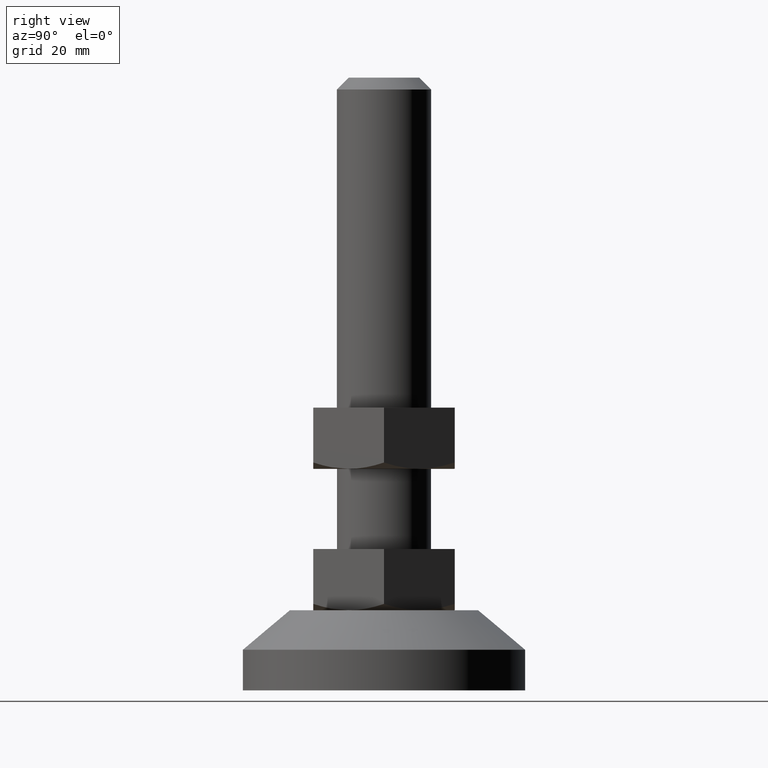
[diagram: clean part render]
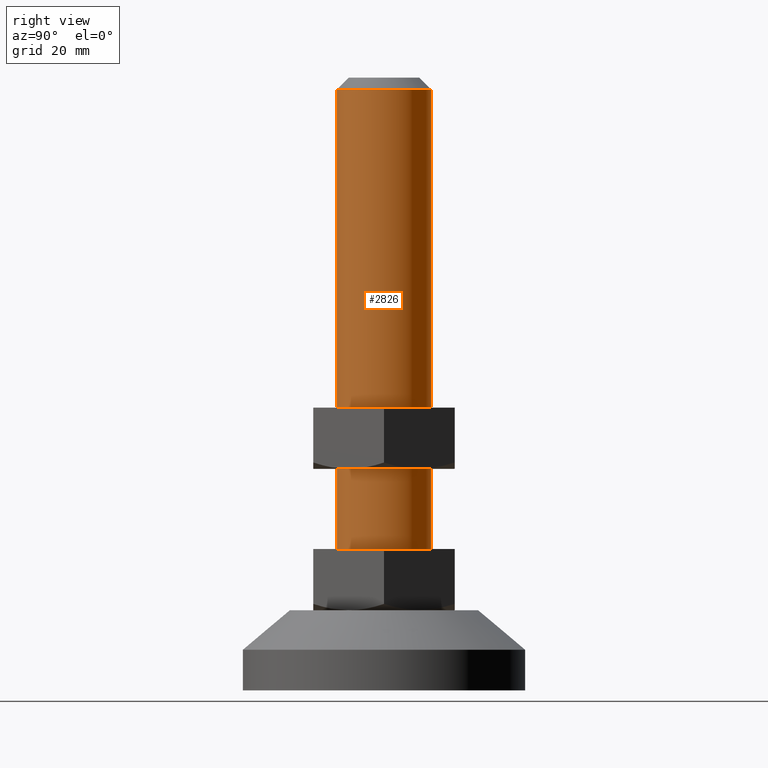
[diagram: same view with one face highlighted and labeled with its STEP entity id]
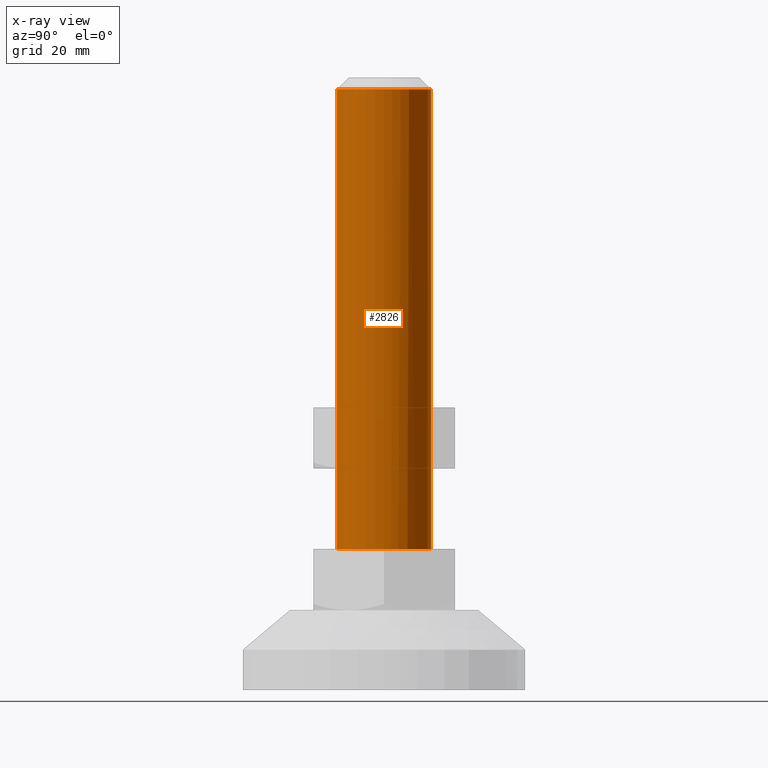
[diagram: x-ray of the same camera — body ghosted, the highlighted face saturated]
A machine part, right view. The second image highlights one B-rep face of the part: STEP entity #2826.
The next image is the same camera in x-ray: the body ghosted, the highlighted face saturated — about 0% of this face is hidden behind the body in this view.
In plain terms, the highlighted face is a freeform B-spline surface patch.
Its self-contained STEP definition (entity closure, byte-faithful):
#2609=CARTESIAN_POINT('',(0.087265355858827,9.999619230753309,127.499999999880700));
#2610=VERTEX_POINT('',#2609);
#2616=CARTESIAN_POINT('',(-0.610485395432718,9.981347984213521,127.500000000000000));
#2617=VERTEX_POINT('',#2616);
#2618=CARTESIAN_POINT('',(-0.610485395432718,9.981347984213521,127.500000000000000));
#2619=CARTESIAN_POINT('',(-0.378209774318188,9.995555270026472,127.499999999960200));
#2620=CARTESIAN_POINT('',(-0.145435293861709,10.001650923402650,127.499999999920600));
#2621=CARTESIAN_POINT('',(0.087265355858827,9.999619230753309,127.499999999880700));
#2622=B_SPLINE_CURVE_WITH_KNOTS('',3,(#2618,#2619,#2620,#2621),.UNSPECIFIED.,.F.,.U.,(4,4),(1.108738E-010,0.698133916919529),.UNSPECIFIED.);
#2623=EDGE_CURVE('',#2617,#2610,#2622,.T.);
#2659=CARTESIAN_POINT('',(0.610485395432717,-9.981347984213521,127.500000000000000));
#2660=VERTEX_POINT('',#2659);
#2668=CARTESIAN_POINT('',(10.0,0.0,127.500000000000000));
#2669=VERTEX_POINT('',#2668);
#2670=CARTESIAN_POINT('',(10.0,0.0,127.500000000000000));
#2671=CARTESIAN_POINT('',(10.0,-9.407060668977495,127.500000000000000));
#2672=CARTESIAN_POINT('',(0.610485395432717,-9.981347984213523,127.499999999999960));
#2680=(BOUNDED_CURVE()B_SPLINE_CURVE(2,(#2670,#2671,#2672),.UNSPECIFIED.,.F.,.U.)B_SPLINE_CURVE_WITH_KNOTS((3,3),(0.0,0.239332962240514),.UNSPECIFIED.)CURVE()GEOMETRIC_REPRESENTATION_ITEM()RATIONAL_B_SPLINE_CURVE((1.0,0.719603993284870,0.976072041670084))REPRESENTATION_ITEM(''));
#2681=EDGE_CURVE('',#2669,#2660,#2680,.T.);
#2683=CARTESIAN_POINT('',(0.087265355858827,9.999619230753309,127.499999999880710));
#2684=CARTESIAN_POINT('',(10.000000000000520,9.913112105142877,127.499999999940340));
#2685=CARTESIAN_POINT('',(10.0,0.0,127.500000000000000));
#2693=(BOUNDED_CURVE()B_SPLINE_CURVE(2,(#2683,#2684,#2685),.UNSPECIFIED.,.F.,.U.)B_SPLINE_CURVE_WITH_KNOTS((3,3),(0.751539894350383,1.0),.UNSPECIFIED.)CURVE()GEOMETRIC_REPRESENTATION_ITEM()RATIONAL_B_SPLINE_CURVE((0.996414028064775,0.708910879638213,1.0))REPRESENTATION_ITEM(''));
#2694=EDGE_CURVE('',#2610,#2669,#2693,.T.);
#2721=CARTESIAN_POINT('',(0.610485395432717,-9.981347984213521,30.0));
#2722=VERTEX_POINT('',#2721);
#2740=CARTESIAN_POINT('',(0.610485395432717,-9.981347984213521,127.500000000000000));
#2741=CARTESIAN_POINT('',(0.610485395432717,-9.981347984213521,30.0));
#2742=QUASI_UNIFORM_CURVE('',1,(#2740,#2741),.UNSPECIFIED.,.F.,.U.);
#2743=EDGE_CURVE('',#2660,#2722,#2742,.T.);
#2748=CARTESIAN_POINT('',(-0.610485395432718,9.981347984213521,30.0));
#2749=VERTEX_POINT('',#2748);
#2750=CARTESIAN_POINT('',(-0.610485395432718,9.981347984213521,127.500000000000000));
#2751=CARTESIAN_POINT('',(-0.610485395432718,9.981347984213521,30.0));
#2752=QUASI_UNIFORM_CURVE('',1,(#2750,#2751),.UNSPECIFIED.,.F.,.U.);
#2753=EDGE_CURVE('',#2617,#2749,#2752,.T.);
#2771=CARTESIAN_POINT('',(-0.610485395348570,9.981347984218667,129.937500000000000));
#2772=CARTESIAN_POINT('',(9.370862588870097,10.591833379567237,129.937500000000030));
#2773=CARTESIAN_POINT('',(9.981347984218667,0.610485395348570,129.937500000000000));
#2774=CARTESIAN_POINT('',(10.591833379567237,-9.370862588870097,129.937500000000030));
#2775=CARTESIAN_POINT('',(0.610485395348570,-9.981347984218667,129.937500000000000));
#2776=CARTESIAN_POINT('',(-0.610485395348570,9.981347984218667,27.501562500000009));
#2777=CARTESIAN_POINT('',(9.370862588870097,10.591833379567237,27.501562500000013));
#2778=CARTESIAN_POINT('',(9.981347984218667,0.610485395348570,27.501562500000009));
#2779=CARTESIAN_POINT('',(10.591833379567237,-9.370862588870097,27.501562500000013));
#2780=CARTESIAN_POINT('',(0.610485395348570,-9.981347984218667,27.501562500000009));
#2788=(BOUNDED_SURFACE()B_SPLINE_SURFACE(2,1,((#2771,#2776),(#2772,#2777),(#2773,#2778),(#2774,#2779),(#2775,#2780)),.UNSPECIFIED.,.F.,.F.,.U.)B_SPLINE_SURFACE_WITH_KNOTS((3,2,3),(2,2),(0.0,16.568542494923800,33.137084989847587),(0.0,102.435937499999990),.UNSPECIFIED.)GEOMETRIC_REPRESENTATION_ITEM()RATIONAL_B_SPLINE_SURFACE(((1.0,1.0),(0.707106781186548,0.707106781186548),(1.0,1.0),(0.707106781186548,0.707106781186548),(1.0,1.0)))REPRESENTATION_ITEM('')SURFACE());
#2789=CARTESIAN_POINT('',(10.0,0.0,30.0));
#2790=VERTEX_POINT('',#2789);
#2791=CARTESIAN_POINT('',(10.0,0.0,30.0));
#2792=CARTESIAN_POINT('',(10.0,-9.407060668977495,30.000000000000004));
#2793=CARTESIAN_POINT('',(0.610485395432717,-9.981347984213523,29.999999999999993));
#2801=(BOUNDED_CURVE()B_SPLINE_CURVE(2,(#2791,#2792,#2793),.UNSPECIFIED.,.F.,.U.)B_SPLINE_CURVE_WITH_KNOTS((3,3),(0.0,0.239332962240514),.UNSPECIFIED.)CURVE()GEOMETRIC_REPRESENTATION_ITEM()RATIONAL_B_SPLINE_CURVE((1.0,0.719603993284870,0.976072041670084))REPRESENTATION_ITEM(''));
#2802=EDGE_CURVE('',#2790,#2722,#2801,.T.);
#2803=ORIENTED_EDGE('',*,*,#2802,.F.);
#2804=CARTESIAN_POINT('',(-0.610485395432720,9.981347984213521,29.999999999999996));
#2805=CARTESIAN_POINT('',(-0.305527633028082,10.0,30.000000000000004));
#2806=CARTESIAN_POINT('',(0.0,10.0,30.0));
#2807=CARTESIAN_POINT('',(10.000000000000002,10.000000000000002,30.000000000000004));
#2808=CARTESIAN_POINT('',(10.0,0.0,30.0));
#2816=(BOUNDED_CURVE()B_SPLINE_CURVE(2,(#2804,#2805,#2806,#2807,#2808),.UNSPECIFIED.,.F.,.U.)B_SPLINE_CURVE_WITH_KNOTS((3,2,3),(0.739332962240514,0.750000000000000,1.0),.UNSPECIFIED.)CURVE()GEOMETRIC_REPRESENTATION_ITEM()RATIONAL_B_SPLINE_CURVE((0.976072041670084,0.987502787901678,1.0,0.707106781186548,1.0))REPRESENTATION_ITEM(''));
#2817=EDGE_CURVE('',#2749,#2790,#2816,.T.);
#2818=ORIENTED_EDGE('',*,*,#2817,.F.);
#2819=ORIENTED_EDGE('',*,*,#2753,.F.);
#2820=ORIENTED_EDGE('',*,*,#2623,.T.);
#2821=ORIENTED_EDGE('',*,*,#2694,.T.);
#2822=ORIENTED_EDGE('',*,*,#2681,.T.);
#2823=ORIENTED_EDGE('',*,*,#2743,.T.);
#2824=EDGE_LOOP('',(#2803,#2818,#2819,#2820,#2821,#2822,#2823));
#2825=FACE_OUTER_BOUND('',#2824,.T.);
#2826=ADVANCED_FACE('',(#2825),#2788,.T.);